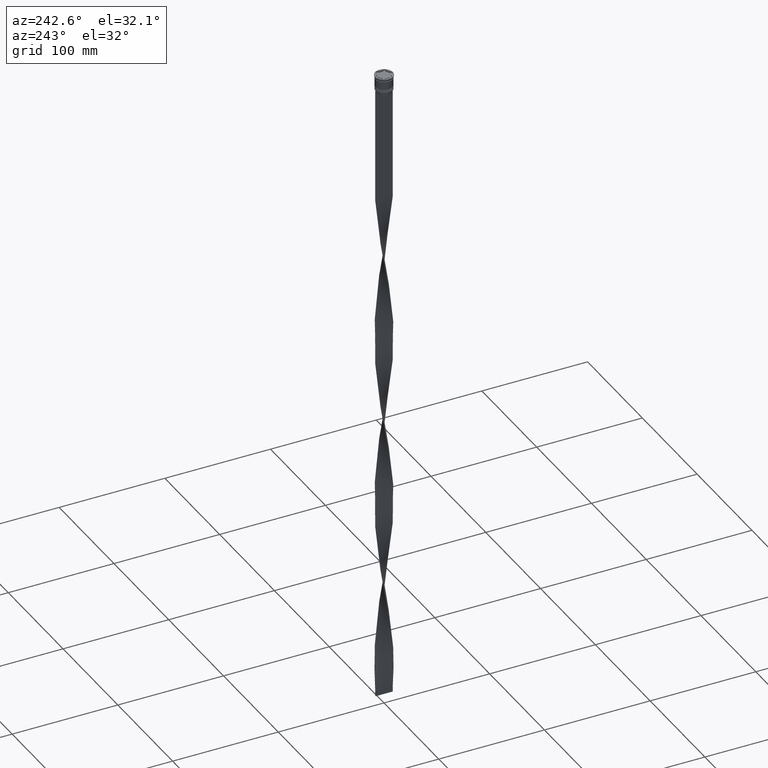
[diagram: clean part render]
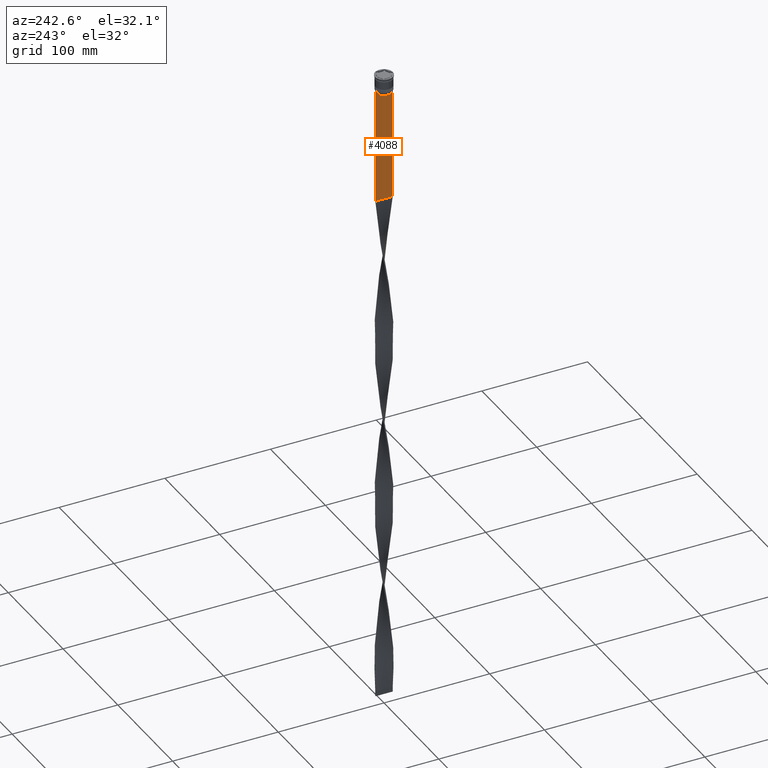
[diagram: same view with one face highlighted and labeled with its STEP entity id]
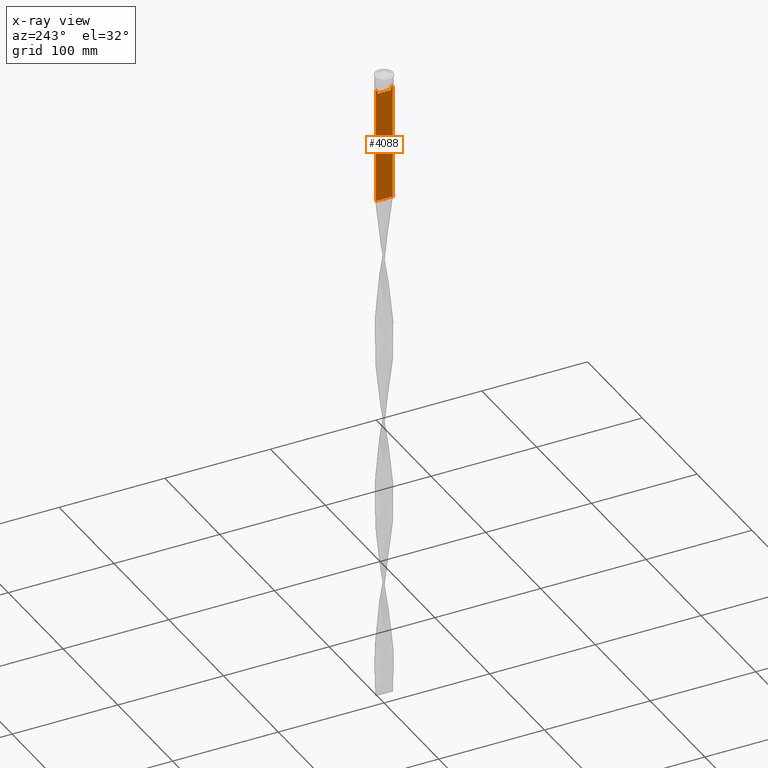
[diagram: x-ray of the same camera — body ghosted, the highlighted face saturated]
A machine part, auxiliary view. The second image highlights one B-rep face of the part: STEP entity #4088.
The next image is the same camera in x-ray: the body ghosted, the highlighted face saturated — about 0% of this face is hidden behind the body in this view.
In plain terms, the highlighted planar face has unit normal (-1, 0, 0).
Its self-contained STEP definition (entity closure, byte-faithful):
#3 = CARTESIAN_POINT ( 'NONE',  ( -0.4999999999999998890, -8.000000000000003553, -14.00000000000000178 ) ) ;
#34 = DIRECTION ( 'NONE',  ( 0.000000000000000000, -1.000000000000000000, 0.000000000000000000 ) ) ;
#141 = CARTESIAN_POINT ( 'NONE',  ( -0.4999999999999998890, 6.380438856379708312, -14.50000000000000000 ) ) ;
#232 = EDGE_LOOP ( 'NONE', ( #1085, #2188, #1235, #3191, #1063, #1575, #4144, #4165, #1640, #4049, #2438, #3353 ) ) ;
#238 = VERTEX_POINT ( 'NONE', #3180 ) ;
#306 = AXIS2_PLACEMENT_3D ( 'NONE', #1544, #3236, #860 ) ;
#343 = DIRECTION ( 'NONE',  ( 0.000000000000000000, 0.000000000000000000, -1.000000000000000000 ) ) ;
#356 = DIRECTION ( 'NONE',  ( -0.000000000000000000, -0.000000000000000000, 1.000000000000000000 ) ) ;
#388 = EDGE_CURVE ( 'NONE', #2902, #3643, #832, .T. ) ;
#429 = CARTESIAN_POINT ( 'NONE',  ( -0.4999999999999998890, 7.884161337770806632, -14.00000000000000178 ) ) ;
#434 = CARTESIAN_POINT ( 'NONE',  ( -0.4999999999999998890, -8.000000000000003553, -14.00000000000000178 ) ) ;
#493 = DIRECTION ( 'NONE',  ( 0.000000000000000000, -1.000000000000000000, 0.000000000000000000 ) ) ;
#605 = CARTESIAN_POINT ( 'NONE',  ( -0.4999999999999998890, -6.881860213634098500, -14.00000000000000178 ) ) ;
#627 = CARTESIAN_POINT ( 'NONE',  ( -0.4999999999999998890, -8.000000000000003553, -123.0000000000000000 ) ) ;
#637 = CARTESIAN_POINT ( 'NONE',  ( -0.4999999999999998890, 6.380438856379708312, -17.00000000000000000 ) ) ;
#832 = LINE ( 'NONE', #1890, #4285 ) ;
#860 = DIRECTION ( 'NONE',  ( 0.000000000000000000, 0.000000000000000000, 1.000000000000000000 ) ) ;
#938 = CARTESIAN_POINT ( 'NONE',  ( -0.4999999999999998890, -6.714736947305992132, -14.16668390685738999 ) ) ;
#967 = LINE ( 'NONE', #627, #3125 ) ;
#1037 = B_SPLINE_CURVE_WITH_KNOTS ( 'NONE', 3,
 ( #1783, #3206, #3469, #3516 ),
 .UNSPECIFIED., .F., .F.,
 ( 4, 4 ),
 ( 0.01172465562756038263, 0.01243276816391822651 ),
 .UNSPECIFIED. ) ;
#1063 = ORIENTED_EDGE ( 'NONE', *, *, #4388, .F. ) ;
#1085 = ORIENTED_EDGE ( 'NONE', *, *, #3740, .F. ) ;
#1172 = VERTEX_POINT ( 'NONE', #4469 ) ;
#1235 = ORIENTED_EDGE ( 'NONE', *, *, #4412, .F. ) ;
#1283 = CARTESIAN_POINT ( 'NONE',  ( -0.4999999999999998890, -6.881860213634098500, -14.00000000000000178 ) ) ;
#1295 = CARTESIAN_POINT ( 'NONE',  ( -0.4999999999999998890, 6.881860213634098500, -14.00000000000000178 ) ) ;
#1311 = CARTESIAN_POINT ( 'NONE',  ( -0.4999999999999998890, -8.000000000000003553, 2.031219541881394530 ) ) ;
#1360 = VERTEX_POINT ( 'NONE', #3075 ) ;
#1366 = EDGE_CURVE ( 'NONE', #1172, #1360, #3098, .T. ) ;
#1399 = VECTOR ( 'NONE', #2428, 1000.000000000000000 ) ;
#1424 = LINE ( 'NONE', #3183, #1747 ) ;
#1544 = CARTESIAN_POINT ( 'NONE',  ( -0.4999999999999998890, -8.000000000000003553, 2.031219541881394530 ) ) ;
#1575 = ORIENTED_EDGE ( 'NONE', *, *, #1998, .F. ) ;
#1640 = ORIENTED_EDGE ( 'NONE', *, *, #4252, .F. ) ;
#1711 = CARTESIAN_POINT ( 'NONE',  ( -0.4999999999999998890, -8.000000000000003553, -123.0000000000000000 ) ) ;
#1734 = VERTEX_POINT ( 'NONE', #1283 ) ;
#1747 = VECTOR ( 'NONE', #356, 1000.000000000000000 ) ;
#1783 = CARTESIAN_POINT ( 'NONE',  ( -0.4999999999999998890, 6.881860213634098500, -14.00000000000000178 ) ) ;
#1875 = EDGE_CURVE ( 'NONE', #1997, #238, #2666, .T. ) ;
#1877 = LINE ( 'NONE', #3525, #2913 ) ;
#1890 = CARTESIAN_POINT ( 'NONE',  ( -0.4999999999999998890, -8.000000000000003553, -14.00000000000000178 ) ) ;
#1997 = VERTEX_POINT ( 'NONE', #637 ) ;
#1998 = EDGE_CURVE ( 'NONE', #1360, #3708, #4415, .T. ) ;
#2005 = CARTESIAN_POINT ( 'NONE',  ( -0.4999999999999998890, -8.000000000000003553, -14.00000000000000178 ) ) ;
#2007 = CARTESIAN_POINT ( 'NONE',  ( -0.4999999999999998890, 7.999999999999996447, -14.00000000000000178 ) ) ;
#2117 = VECTOR ( 'NONE', #2660, 1000.000000000000000 ) ;
#2124 = B_SPLINE_CURVE_WITH_KNOTS ( 'NONE', 3,
 ( #3366, #4009, #938, #605 ),
 .UNSPECIFIED., .F., .F.,
 ( 4, 4 ),
 ( 0.02996184199614749730, 0.03067452609193703841 ),
 .UNSPECIFIED. ) ;
#2155 = LINE ( 'NONE', #434, #3341 ) ;
#2177 = DIRECTION ( 'NONE',  ( 0.000000000000000000, 0.000000000000000000, -1.000000000000000000 ) ) ;
#2188 = ORIENTED_EDGE ( 'NONE', *, *, #388, .F. ) ;
#2226 = CARTESIAN_POINT ( 'NONE',  ( -0.4999999999999998890, 6.380438856379708312, 0.000000000000000000 ) ) ;
#2428 = DIRECTION ( 'NONE',  ( 0.000000000000000000, -1.000000000000000000, 0.000000000000000000 ) ) ;
#2438 = ORIENTED_EDGE ( 'NONE', *, *, #1875, .F. ) ;
#2564 = LINE ( 'NONE', #2226, #2760 ) ;
#2565 = VECTOR ( 'NONE', #343, 1000.000000000000000 ) ;
#2660 = DIRECTION ( 'NONE',  ( 0.000000000000000000, -1.000000000000000000, 0.000000000000000000 ) ) ;
#2666 = LINE ( 'NONE', #4036, #1399 ) ;
#2709 = DIRECTION ( 'NONE',  ( 0.000000000000000000, 1.000000000000000000, 0.000000000000000000 ) ) ;
#2740 = VERTEX_POINT ( 'NONE', #2007 ) ;
#2760 = VECTOR ( 'NONE', #2177, 1000.000000000000000 ) ;
#2902 = VERTEX_POINT ( 'NONE', #429 ) ;
#2913 = VECTOR ( 'NONE', #2920, 1000.000000000000000 ) ;
#2920 = DIRECTION ( 'NONE',  ( 0.000000000000000000, 0.000000000000000000, -1.000000000000000000 ) ) ;
#2928 = EDGE_CURVE ( 'NONE', #238, #3963, #1424, .T. ) ;
#3075 = CARTESIAN_POINT ( 'NONE',  ( -0.4999999999999998890, -8.000000000000003553, -14.00000000000000178 ) ) ;
#3098 = LINE ( 'NONE', #3, #3753 ) ;
#3125 = VECTOR ( 'NONE', #2709, 1000.000000000000000 ) ;
#3180 = CARTESIAN_POINT ( 'NONE',  ( -0.4999999999999998890, -6.380438856379708312, -17.00000000000000000 ) ) ;
#3183 = CARTESIAN_POINT ( 'NONE',  ( -0.4999999999999998890, -6.380438856379708312, 0.000000000000000000 ) ) ;
#3191 = ORIENTED_EDGE ( 'NONE', *, *, #4076, .T. ) ;
#3200 = VERTEX_POINT ( 'NONE', #141 ) ;
#3206 = CARTESIAN_POINT ( 'NONE',  ( -0.4999999999999998890, 6.714736947114692711, -14.16668390704818847 ) ) ;
#3236 = DIRECTION ( 'NONE',  ( -1.000000000000000000, 0.000000000000000000, 0.000000000000000000 ) ) ;
#3256 = CARTESIAN_POINT ( 'NONE',  ( -0.4999999999999998890, -6.380438856379708312, -14.50000000000000000 ) ) ;
#3341 = VECTOR ( 'NONE', #3590, 1000.000000000000000 ) ;
#3353 = ORIENTED_EDGE ( 'NONE', *, *, #3994, .F. ) ;
#3366 = CARTESIAN_POINT ( 'NONE',  ( -0.4999999999999998890, -6.380438856379708312, -14.50000000000000000 ) ) ;
#3469 = CARTESIAN_POINT ( 'NONE',  ( -0.4999999999999998890, 6.547597841304911626, -14.33335192459222718 ) ) ;
#3516 = CARTESIAN_POINT ( 'NONE',  ( -0.4999999999999998890, 6.380438856379708312, -14.50000000000000000 ) ) ;
#3525 = CARTESIAN_POINT ( 'NONE',  ( -0.4999999999999998890, 7.999999999999996447, 2.031219541881394530 ) ) ;
#3590 = DIRECTION ( 'NONE',  ( 0.000000000000000000, -1.000000000000000000, 0.000000000000000000 ) ) ;
#3612 = VERTEX_POINT ( 'NONE', #4027 ) ;
#3643 = VERTEX_POINT ( 'NONE', #1295 ) ;
#3708 = VERTEX_POINT ( 'NONE', #1711 ) ;
#3740 = EDGE_CURVE ( 'NONE', #3643, #3200, #1037, .T. ) ;
#3753 = VECTOR ( 'NONE', #34, 1000.000000000000000 ) ;
#3963 = VERTEX_POINT ( 'NONE', #3256 ) ;
#3994 = EDGE_CURVE ( 'NONE', #3200, #1997, #2564, .T. ) ;
#4009 = CARTESIAN_POINT ( 'NONE',  ( -0.4999999999999998890, -6.547597841511246131, -14.33335192438652328 ) ) ;
#4027 = CARTESIAN_POINT ( 'NONE',  ( -0.4999999999999998890, 7.999999999999996447, -123.0000000000000000 ) ) ;
#4036 = CARTESIAN_POINT ( 'NONE',  ( -0.4999999999999998890, 6.399999999999999467, -17.00000000000000000 ) ) ;
#4047 = EDGE_CURVE ( 'NONE', #1734, #1172, #2155, .T. ) ;
#4049 = ORIENTED_EDGE ( 'NONE', *, *, #2928, .F. ) ;
#4076 = EDGE_CURVE ( 'NONE', #2740, #3612, #1877, .T. ) ;
#4088 = ADVANCED_FACE ( 'NONE', ( #4250 ), #4301, .T. ) ;
#4144 = ORIENTED_EDGE ( 'NONE', *, *, #1366, .F. ) ;
#4165 = ORIENTED_EDGE ( 'NONE', *, *, #4047, .F. ) ;
#4250 = FACE_OUTER_BOUND ( 'NONE', #232, .T. ) ;
#4252 = EDGE_CURVE ( 'NONE', #3963, #1734, #2124, .T. ) ;
#4285 = VECTOR ( 'NONE', #493, 1000.000000000000000 ) ;
#4301 = PLANE ( 'NONE',  #306 ) ;
#4381 = LINE ( 'NONE', #2005, #2117 ) ;
#4388 = EDGE_CURVE ( 'NONE', #3708, #3612, #967, .T. ) ;
#4412 = EDGE_CURVE ( 'NONE', #2740, #2902, #4381, .T. ) ;
#4415 = LINE ( 'NONE', #1311, #2565 ) ;
#4469 = CARTESIAN_POINT ( 'NONE',  ( -0.4999999999999998890, -7.884161337770806632, -14.00000000000000178 ) ) ;